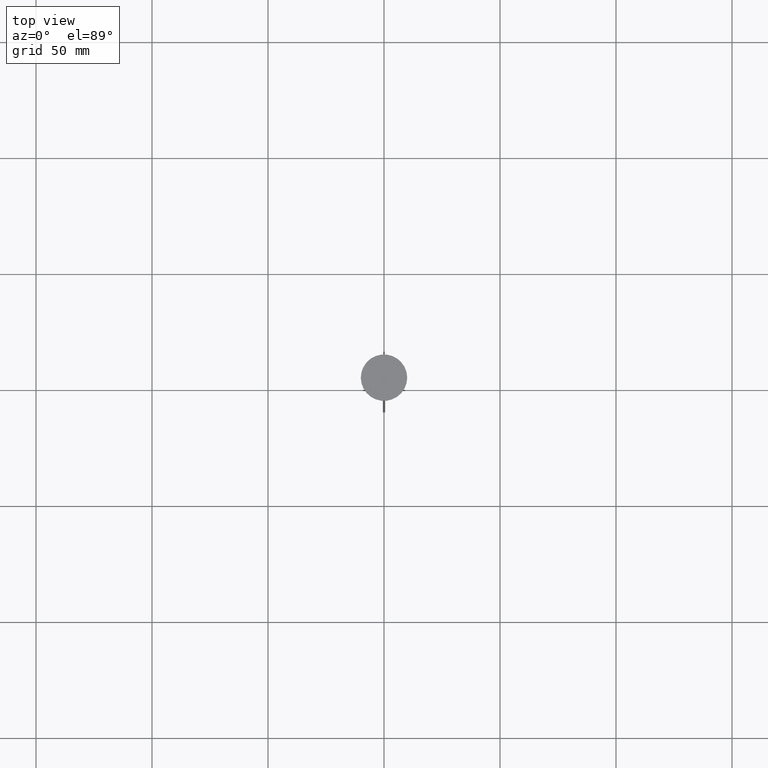
[diagram: clean part render]
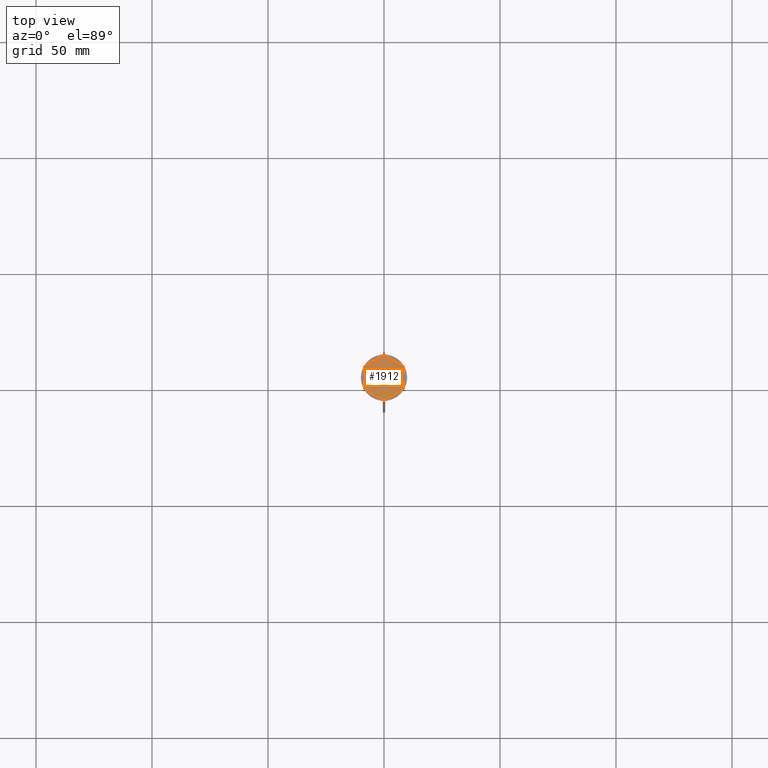
[diagram: same view with one face highlighted and labeled with its STEP entity id]
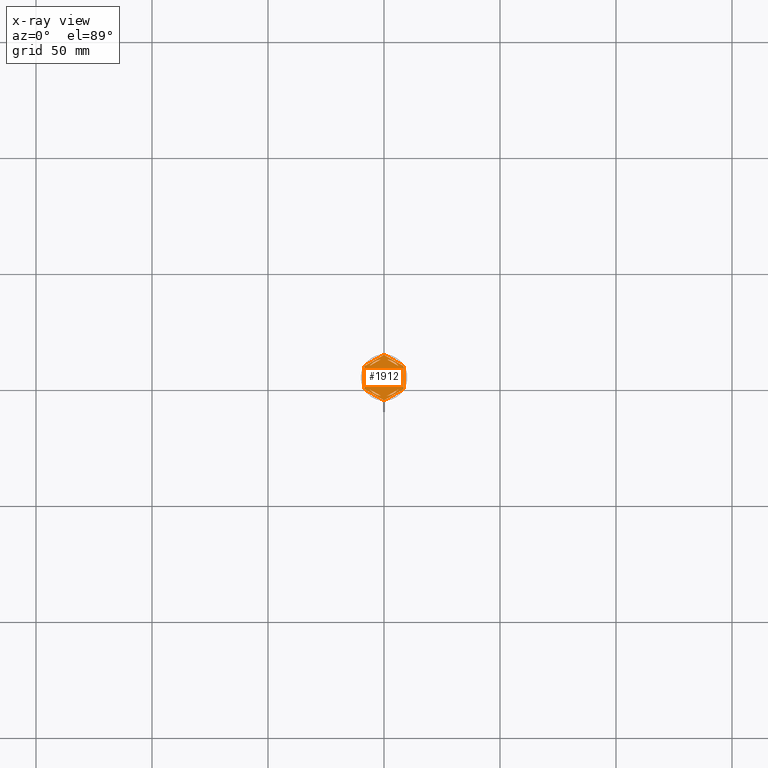
[diagram: x-ray of the same camera — body ghosted, the highlighted face saturated]
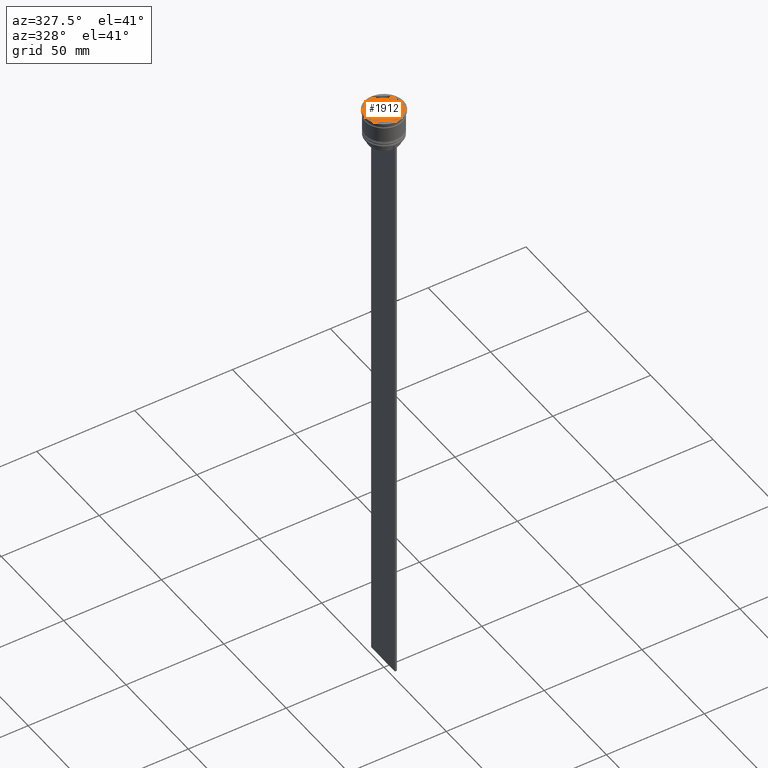
[diagram: same view with one face highlighted and labeled with its STEP entity id]
A machine part, top view. The second image highlights one B-rep face of the part: STEP entity #1912.
The next image is the same camera in x-ray: the body ghosted, the highlighted face saturated — about 0% of this face is hidden behind the body in this view.
A second angle (auxiliary view) of the same face is appended — the face is thin or edge-on in the first view.
In plain terms, the highlighted planar face has unit normal (0, 0, 1).
Its self-contained STEP definition (entity closure, byte-faithful):
#19 = AXIS2_PLACEMENT_3D ( 'NONE', #2513, #1506, #1887 ) ;
#20 = CIRCLE ( 'NONE', #2476, 9.699999999999990408 ) ;
#26 = DIRECTION ( 'NONE',  ( 1.000000000000000000, 0.000000000000000000, 0.000000000000000000 ) ) ;
#53 = ORIENTED_EDGE ( 'NONE', *, *, #2583, .T. ) ;
#59 = LINE ( 'NONE', #2103, #1537 ) ;
#65 = VECTOR ( 'NONE', #997, 1000.000000000000227 ) ;
#78 = LINE ( 'NONE', #2530, #1834 ) ;
#90 = EDGE_CURVE ( 'NONE', #817, #747, #784, .T. ) ;
#91 = CARTESIAN_POINT ( 'NONE',  ( 0.2027787310304044188, -9.697880221277303647, -1.000000000000000000 ) ) ;
#99 = DIRECTION ( 'NONE',  ( 1.000000000000000000, 0.000000000000000000, 0.000000000000000000 ) ) ;
#118 = VECTOR ( 'NONE', #1103, 999.9999999999998863 ) ;
#123 = VERTEX_POINT ( 'NONE', #208 ) ;
#132 = VERTEX_POINT ( 'NONE', #1419 ) ;
#156 = VECTOR ( 'NONE', #1007, 1000.000000000000114 ) ;
#179 = EDGE_LOOP ( 'NONE', ( #2182, #2566 ) ) ;
#188 = CIRCLE ( 'NONE', #1225, 8.000000000000000000 ) ;
#202 = DIRECTION ( 'NONE',  ( 0.8660254037844387076, -0.4999999999999998890, 0.000000000000000000 ) ) ;
#204 = DIRECTION ( 'NONE',  ( 1.000000000000000000, 0.000000000000000000, 0.000000000000000000 ) ) ;
#208 = CARTESIAN_POINT ( 'NONE',  ( -6.160912690248237844, -5.103249437675787092, -1.000000000000000888 ) ) ;
#209 = CARTESIAN_POINT ( 'NONE',  ( 0.000000000000000000, 0.000000000000000000, -1.000000000000000000 ) ) ;
#220 = VERTEX_POINT ( 'NONE', #642 ) ;
#245 = AXIS2_PLACEMENT_3D ( 'NONE', #1846, #1832, #204 ) ;
#256 = CARTESIAN_POINT ( 'NONE',  ( -1.339087309751759047, 7.887131619090796519, -1.000000000000000888 ) ) ;
#262 = ORIENTED_EDGE ( 'NONE', *, *, #1725, .F. ) ;
#275 = CARTESIAN_POINT ( 'NONE',  ( 0.000000000000000000, 0.000000000000000000, -1.000000000000000000 ) ) ;
#276 = ORIENTED_EDGE ( 'NONE', *, *, #1402, .F. ) ;
#280 = DIRECTION ( 'NONE',  ( 0.000000000000000000, 1.000000000000000000, 0.000000000000000000 ) ) ;
#282 = CARTESIAN_POINT ( 'NONE',  ( 8.673617379884035472E-16, 8.660254037844385522, -1.000000000000000888 ) ) ;
#286 = CARTESIAN_POINT ( 'NONE',  ( 0.000000000000000000, 0.000000000000000000, -1.000000000000000000 ) ) ;
#299 = AXIS2_PLACEMENT_3D ( 'NONE', #1893, #1048, #26 ) ;
#300 = VECTOR ( 'NONE', #2032, 1000.000000000000000 ) ;
#328 = EDGE_CURVE ( 'NONE', #446, #132, #78, .T. ) ;
#330 = LINE ( 'NONE', #1617, #2011 ) ;
#338 = DIRECTION ( 'NONE',  ( 1.000000000000000000, 0.000000000000000000, 0.000000000000000000 ) ) ;
#342 = AXIS2_PLACEMENT_3D ( 'NONE', #209, #1098, #1449 ) ;
#367 = CARTESIAN_POINT ( 'NONE',  ( 0.000000000000000000, 0.000000000000000000, -1.000000000000000000 ) ) ;
#375 = CIRCLE ( 'NONE', #2220, 9.699999999999990408 ) ;
#390 = DIRECTION ( 'NONE',  ( -0.000000000000000000, -0.000000000000000000, -1.000000000000000000 ) ) ;
#401 = DIRECTION ( 'NONE',  ( -0.000000000000000000, -0.000000000000000000, -1.000000000000000000 ) ) ;
#419 = CIRCLE ( 'NONE', #1193, 9.699999999999990408 ) ;
#445 = CARTESIAN_POINT ( 'NONE',  ( 0.000000000000000000, 9.814954576223636096, -1.000000000000000000 ) ) ;
#446 = VERTEX_POINT ( 'NONE', #2562 ) ;
#472 = VERTEX_POINT ( 'NONE', #1498 ) ;
#476 = CARTESIAN_POINT ( 'NONE',  ( -1.301042606982605321E-15, -8.660254037844387298, -1.000000000000000888 ) ) ;
#478 = CARTESIAN_POINT ( 'NONE',  ( 0.000000000000000000, 0.000000000000000000, -1.000000000000000000 ) ) ;
#484 = VERTEX_POINT ( 'NONE', #2349 ) ;
#487 = VERTEX_POINT ( 'NONE', #2411 ) ;
#523 = DIRECTION ( 'NONE',  ( -2.003086131649545704E-16, -1.000000000000000000, 0.000000000000000000 ) ) ;
#553 = VECTOR ( 'NONE', #523, 1000.000000000000000 ) ;
#565 = VERTEX_POINT ( 'NONE', #1385 ) ;
#566 = EDGE_CURVE ( 'NONE', #472, #747, #20, .T. ) ;
#583 = CIRCLE ( 'NONE', #722, 9.699999999999990408 ) ;
#588 = DIRECTION ( 'NONE',  ( 1.000000000000000000, 0.000000000000000000, 0.000000000000000000 ) ) ;
#603 = CARTESIAN_POINT ( 'NONE',  ( 0.000000000000000000, 0.000000000000000000, -1.000000000000000000 ) ) ;
#631 = CIRCLE ( 'NONE', #19, 8.000000000000000000 ) ;
#642 = CARTESIAN_POINT ( 'NONE',  ( -8.297221268969593666, 5.024551643058155825, -1.000000000000000000 ) ) ;
#648 = EDGE_CURVE ( 'NONE', #817, #749, #375, .T. ) ;
#665 = EDGE_CURVE ( 'NONE', #1848, #484, #2093, .T. ) ;
#670 = ORIENTED_EDGE ( 'NONE', *, *, #2458, .T. ) ;
#674 = VERTEX_POINT ( 'NONE', #878 ) ;
#675 = CIRCLE ( 'NONE', #245, 8.000000000000000000 ) ;
#687 = CARTESIAN_POINT ( 'NONE',  ( -0.2027787310304044188, -9.697880221277303647, -1.000000000000000000 ) ) ;
#694 = CARTESIAN_POINT ( 'NONE',  ( 1.339087309751762156, -7.887131619090794743, -1.000000000000000888 ) ) ;
#703 = CARTESIAN_POINT ( 'NONE',  ( 8.297221268969593666, 5.024551643058155825, -1.000000000000000000 ) ) ;
#707 = CARTESIAN_POINT ( 'NONE',  ( -8.500000000000000000, -4.673328578219146934, -1.000000000000000000 ) ) ;
#718 = ORIENTED_EDGE ( 'NONE', *, *, #2193, .F. ) ;
#720 = DIRECTION ( 'NONE',  ( 0.000000000000000000, 0.000000000000000000, 1.000000000000000000 ) ) ;
#722 = AXIS2_PLACEMENT_3D ( 'NONE', #1373, #2625, #772 ) ;
#724 = DIRECTION ( 'NONE',  ( -0.000000000000000000, -0.000000000000000000, -1.000000000000000000 ) ) ;
#747 = VERTEX_POINT ( 'NONE', #2283 ) ;
#748 = CARTESIAN_POINT ( 'NONE',  ( -8.000000000000000000, 0.000000000000000000, -1.000000000000000000 ) ) ;
#749 = VERTEX_POINT ( 'NONE', #687 ) ;
#771 = VERTEX_POINT ( 'NONE', #1247 ) ;
#772 = DIRECTION ( 'NONE',  ( 1.000000000000000000, 2.486899575160350651E-14, 0.000000000000000000 ) ) ;
#780 = EDGE_LOOP ( 'NONE', ( #1844, #1429, #1566 ) ) ;
#782 = FACE_BOUND ( 'NONE', #1889, .T. ) ;
#784 = LINE ( 'NONE', #2071, #65 ) ;
#805 = ORIENTED_EDGE ( 'NONE', *, *, #1901, .F. ) ;
#814 = EDGE_LOOP ( 'NONE', ( #2319, #1381 ) ) ;
#817 = VERTEX_POINT ( 'NONE', #91 ) ;
#844 = VECTOR ( 'NONE', #2043, 1000.000000000000114 ) ;
#848 = LINE ( 'NONE', #445, #156 ) ;
#865 = ORIENTED_EDGE ( 'NONE', *, *, #2596, .F. ) ;
#878 = CARTESIAN_POINT ( 'NONE',  ( -8.297221268969593666, -5.024551643058157602, -1.000000000000000000 ) ) ;
#888 = CIRCLE ( 'NONE', #1928, 8.000000000000000000 ) ;
#916 = EDGE_CURVE ( 'NONE', #565, #2284, #330, .T. ) ;
#935 = VECTOR ( 'NONE', #1298, 1000.000000000000114 ) ;
#971 = FACE_BOUND ( 'NONE', #1892, .T. ) ;
#997 = DIRECTION ( 'NONE',  ( 0.8660254037844385966, 0.5000000000000000000, 0.000000000000000000 ) ) ;
#1007 = DIRECTION ( 'NONE',  ( -0.8660254037844387076, -0.4999999999999997780, 0.000000000000000000 ) ) ;
#1033 = ORIENTED_EDGE ( 'NONE', *, *, #2026, .F. ) ;
#1048 = DIRECTION ( 'NONE',  ( -0.000000000000000000, -0.000000000000000000, -1.000000000000000000 ) ) ;
#1091 = EDGE_CURVE ( 'NONE', #2600, #2531, #1448, .T. ) ;
#1098 = DIRECTION ( 'NONE',  ( 0.000000000000000000, 0.000000000000000000, 1.000000000000000000 ) ) ;
#1101 = ORIENTED_EDGE ( 'NONE', *, *, #1091, .F. ) ;
#1103 = DIRECTION ( 'NONE',  ( 0.8660254037844387076, 0.5000000000000001110, -0.000000000000000000 ) ) ;
#1111 = CARTESIAN_POINT ( 'NONE',  ( -1.339087309751766819, -7.887131619090794743, -1.000000000000000888 ) ) ;
#1125 = DIRECTION ( 'NONE',  ( 1.000000000000000000, 0.000000000000000000, 0.000000000000000000 ) ) ;
#1126 = VERTEX_POINT ( 'NONE', #2481 ) ;
#1129 = DIRECTION ( 'NONE',  ( 1.000000000000000000, 0.000000000000000000, 0.000000000000000000 ) ) ;
#1173 = EDGE_CURVE ( 'NONE', #771, #1263, #188, .T. ) ;
#1187 = DIRECTION ( 'NONE',  ( 1.000000000000000000, 0.000000000000000000, -0.000000000000000000 ) ) ;
#1193 = AXIS2_PLACEMENT_3D ( 'NONE', #2533, #1695, #1125 ) ;
#1206 = CARTESIAN_POINT ( 'NONE',  ( -8.500000000000000000, -4.907477288111819824, -1.000000000000000000 ) ) ;
#1210 = ORIENTED_EDGE ( 'NONE', *, *, #2231, .F. ) ;
#1219 = LINE ( 'NONE', #1206, #844 ) ;
#1225 = AXIS2_PLACEMENT_3D ( 'NONE', #1228, #2055, #1459 ) ;
#1228 = CARTESIAN_POINT ( 'NONE',  ( 0.000000000000000000, 0.000000000000000000, -1.000000000000000000 ) ) ;
#1234 = VECTOR ( 'NONE', #1731, 1000.000000000000000 ) ;
#1239 = CARTESIAN_POINT ( 'NONE',  ( 8.500000000000000000, 4.673328578219146934, -1.000000000000000000 ) ) ;
#1242 = LINE ( 'NONE', #2504, #2433 ) ;
#1247 = CARTESIAN_POINT ( 'NONE',  ( 6.160912690248237844, 5.103249437675785316, -1.000000000000000888 ) ) ;
#1260 = EDGE_LOOP ( 'NONE', ( #53, #1101, #2654, #276, #1364, #865, #2292, #718, #670, #1737, #2047, #2244 ) ) ;
#1263 = VERTEX_POINT ( 'NONE', #1752 ) ;
#1284 = VERTEX_POINT ( 'NONE', #2554 ) ;
#1286 = DIRECTION ( 'NONE',  ( 0.000000000000000000, 0.000000000000000000, 1.000000000000000000 ) ) ;
#1298 = DIRECTION ( 'NONE',  ( -0.8660254037844387076, -0.4999999999999997780, 0.000000000000000000 ) ) ;
#1300 = LINE ( 'NONE', #1330, #553 ) ;
#1322 = DIRECTION ( 'NONE',  ( -0.8660254037844384856, 0.5000000000000002220, 0.000000000000000000 ) ) ;
#1323 = LINE ( 'NONE', #1536, #1234 ) ;
#1330 = CARTESIAN_POINT ( 'NONE',  ( 7.500000000000000000, -4.330127018922195425, -1.000000000000000888 ) ) ;
#1364 = ORIENTED_EDGE ( 'NONE', *, *, #2094, .T. ) ;
#1373 = CARTESIAN_POINT ( 'NONE',  ( 0.000000000000000000, 0.000000000000000000, -1.000000000000000000 ) ) ;
#1381 = ORIENTED_EDGE ( 'NONE', *, *, #1520, .F. ) ;
#1385 = CARTESIAN_POINT ( 'NONE',  ( -8.500000000000000000, 4.673328578219146934, -1.000000000000000000 ) ) ;
#1402 = EDGE_CURVE ( 'NONE', #1126, #1284, #583, .T. ) ;
#1419 = CARTESIAN_POINT ( 'NONE',  ( -7.500000000000000000, 2.783882181415010759, -1.000000000000000888 ) ) ;
#1429 = ORIENTED_EDGE ( 'NONE', *, *, #328, .F. ) ;
#1448 = CIRCLE ( 'NONE', #299, 9.699999999999990408 ) ;
#1449 = DIRECTION ( 'NONE',  ( 1.000000000000000000, 0.000000000000000000, 0.000000000000000000 ) ) ;
#1459 = DIRECTION ( 'NONE',  ( 1.000000000000000000, 0.000000000000000000, 0.000000000000000000 ) ) ;
#1482 = EDGE_LOOP ( 'NONE', ( #1751, #805 ) ) ;
#1498 = CARTESIAN_POINT ( 'NONE',  ( 8.500000000000000000, -4.673328578219146934, -1.000000000000000000 ) ) ;
#1506 = DIRECTION ( 'NONE',  ( 0.000000000000000000, 0.000000000000000000, 1.000000000000000000 ) ) ;
#1519 = FACE_BOUND ( 'NONE', #814, .T. ) ;
#1520 = EDGE_CURVE ( 'NONE', #1263, #771, #1242, .T. ) ;
#1523 = LINE ( 'NONE', #476, #935 ) ;
#1536 = CARTESIAN_POINT ( 'NONE',  ( 8.500000000000000000, -4.907477288111818936, -1.000000000000000000 ) ) ;
#1537 = VECTOR ( 'NONE', #1322, 1000.000000000000114 ) ;
#1566 = ORIENTED_EDGE ( 'NONE', *, *, #1788, .F. ) ;
#1570 = FACE_BOUND ( 'NONE', #780, .T. ) ;
#1594 = FACE_OUTER_BOUND ( 'NONE', #1260, .T. ) ;
#1617 = CARTESIAN_POINT ( 'NONE',  ( -8.500000000000000000, 4.907477288111818936, -1.000000000000000000 ) ) ;
#1626 = VERTEX_POINT ( 'NONE', #1111 ) ;
#1695 = DIRECTION ( 'NONE',  ( -0.000000000000000000, -0.000000000000000000, -1.000000000000000000 ) ) ;
#1697 = DIRECTION ( 'NONE',  ( 1.000000000000000000, 0.000000000000000000, 0.000000000000000000 ) ) ;
#1725 = EDGE_CURVE ( 'NONE', #123, #1626, #2092, .T. ) ;
#1729 = EDGE_CURVE ( 'NONE', #2407, #2256, #1523, .T. ) ;
#1731 = DIRECTION ( 'NONE',  ( 0.000000000000000000, 1.000000000000000000, 0.000000000000000000 ) ) ;
#1737 = ORIENTED_EDGE ( 'NONE', *, *, #648, .F. ) ;
#1751 = ORIENTED_EDGE ( 'NONE', *, *, #665, .F. ) ;
#1752 = CARTESIAN_POINT ( 'NONE',  ( 1.339087309751760380, 7.887131619090794743, -1.000000000000000888 ) ) ;
#1787 = CARTESIAN_POINT ( 'NONE',  ( 7.500000000000001776, 2.783882181415006762, -1.000000000000000888 ) ) ;
#1788 = EDGE_CURVE ( 'NONE', #2410, #446, #631, .T. ) ;
#1814 = EDGE_CURVE ( 'NONE', #1626, #123, #59, .T. ) ;
#1832 = DIRECTION ( 'NONE',  ( 0.000000000000000000, 0.000000000000000000, 1.000000000000000000 ) ) ;
#1834 = VECTOR ( 'NONE', #280, 1000.000000000000000 ) ;
#1844 = ORIENTED_EDGE ( 'NONE', *, *, #1995, .F. ) ;
#1846 = CARTESIAN_POINT ( 'NONE',  ( 0.000000000000000000, 0.000000000000000000, -1.000000000000000000 ) ) ;
#1848 = VERTEX_POINT ( 'NONE', #256 ) ;
#1887 = DIRECTION ( 'NONE',  ( 1.000000000000000000, 0.000000000000000000, 0.000000000000000000 ) ) ;
#1889 = EDGE_LOOP ( 'NONE', ( #262, #2664 ) ) ;
#1892 = EDGE_LOOP ( 'NONE', ( #1033, #1210 ) ) ;
#1893 = CARTESIAN_POINT ( 'NONE',  ( 0.000000000000000000, 0.000000000000000000, -1.000000000000000000 ) ) ;
#1901 = EDGE_CURVE ( 'NONE', #484, #1848, #2129, .T. ) ;
#1912 = ADVANCED_FACE ( 'NONE', ( #1519, #971, #2429, #782, #1570, #2409, #1594 ), #2393, .T. ) ;
#1928 = AXIS2_PLACEMENT_3D ( 'NONE', #275, #1286, #1129 ) ;
#1931 = VERTEX_POINT ( 'NONE', #1787 ) ;
#1995 = EDGE_CURVE ( 'NONE', #132, #2410, #2223, .T. ) ;
#2011 = VECTOR ( 'NONE', #2037, 1000.000000000000000 ) ;
#2026 = EDGE_CURVE ( 'NONE', #487, #1931, #675, .T. ) ;
#2032 = DIRECTION ( 'NONE',  ( -0.8660254037844388186, 0.4999999999999997224, 0.000000000000000000 ) ) ;
#2037 = DIRECTION ( 'NONE',  ( 0.000000000000000000, -1.000000000000000000, 0.000000000000000000 ) ) ;
#2043 = DIRECTION ( 'NONE',  ( 0.8660254037844387076, -0.4999999999999997780, 0.000000000000000000 ) ) ;
#2047 = ORIENTED_EDGE ( 'NONE', *, *, #90, .T. ) ;
#2055 = DIRECTION ( 'NONE',  ( 0.000000000000000000, 0.000000000000000000, 1.000000000000000000 ) ) ;
#2071 = CARTESIAN_POINT ( 'NONE',  ( 8.729740977282959667E-16, -9.814954576223637872, -1.000000000000000000 ) ) ;
#2072 = CARTESIAN_POINT ( 'NONE',  ( 8.500000000000000000, 4.907477288111819824, -1.000000000000000000 ) ) ;
#2092 = CIRCLE ( 'NONE', #2640, 8.000000000000000000 ) ;
#2093 = CIRCLE ( 'NONE', #342, 8.000000000000000000 ) ;
#2094 = EDGE_CURVE ( 'NONE', #1126, #220, #848, .T. ) ;
#2103 = CARTESIAN_POINT ( 'NONE',  ( -7.500000000000000000, -4.330127018922193649, -1.000000000000000888 ) ) ;
#2129 = LINE ( 'NONE', #282, #118 ) ;
#2177 = CARTESIAN_POINT ( 'NONE',  ( 0.000000000000000000, 0.000000000000000000, -1.000000000000000000 ) ) ;
#2180 = EDGE_CURVE ( 'NONE', #2256, #2407, #888, .T. ) ;
#2182 = ORIENTED_EDGE ( 'NONE', *, *, #2180, .F. ) ;
#2192 = DIRECTION ( 'NONE',  ( 0.000000000000000000, 0.000000000000000000, 1.000000000000000000 ) ) ;
#2193 = EDGE_CURVE ( 'NONE', #674, #2284, #2479, .T. ) ;
#2220 = AXIS2_PLACEMENT_3D ( 'NONE', #603, #390, #2432 ) ;
#2223 = CIRCLE ( 'NONE', #2608, 8.000000000000000000 ) ;
#2231 = EDGE_CURVE ( 'NONE', #1931, #487, #1300, .T. ) ;
#2235 = LINE ( 'NONE', #2072, #300 ) ;
#2244 = ORIENTED_EDGE ( 'NONE', *, *, #566, .F. ) ;
#2256 = VERTEX_POINT ( 'NONE', #694 ) ;
#2267 = AXIS2_PLACEMENT_3D ( 'NONE', #478, #724, #99 ) ;
#2283 = CARTESIAN_POINT ( 'NONE',  ( 8.297221268969593666, -5.024551643058152273, -1.000000000000000000 ) ) ;
#2284 = VERTEX_POINT ( 'NONE', #707 ) ;
#2292 = ORIENTED_EDGE ( 'NONE', *, *, #916, .T. ) ;
#2319 = ORIENTED_EDGE ( 'NONE', *, *, #1173, .F. ) ;
#2349 = CARTESIAN_POINT ( 'NONE',  ( -6.160912690248241397, 5.103249437675783540, -1.000000000000000888 ) ) ;
#2393 = PLANE ( 'NONE',  #2402 ) ;
#2402 = AXIS2_PLACEMENT_3D ( 'NONE', #367, #2192, #1187 ) ;
#2407 = VERTEX_POINT ( 'NONE', #2591 ) ;
#2409 = FACE_BOUND ( 'NONE', #1482, .T. ) ;
#2410 = VERTEX_POINT ( 'NONE', #748 ) ;
#2411 = CARTESIAN_POINT ( 'NONE',  ( 7.500000000000000000, -2.783882181415009427, -1.000000000000000888 ) ) ;
#2421 = CARTESIAN_POINT ( 'NONE',  ( 0.000000000000000000, 0.000000000000000000, -1.000000000000000000 ) ) ;
#2429 = FACE_BOUND ( 'NONE', #179, .T. ) ;
#2432 = DIRECTION ( 'NONE',  ( 1.000000000000000000, 0.000000000000000000, 0.000000000000000000 ) ) ;
#2433 = VECTOR ( 'NONE', #202, 1000.000000000000000 ) ;
#2458 = EDGE_CURVE ( 'NONE', #674, #749, #1219, .T. ) ;
#2476 = AXIS2_PLACEMENT_3D ( 'NONE', #2421, #401, #588 ) ;
#2479 = CIRCLE ( 'NONE', #2267, 9.699999999999990408 ) ;
#2481 = CARTESIAN_POINT ( 'NONE',  ( -0.2027787310304009494, 9.697880221277303647, -1.000000000000000000 ) ) ;
#2487 = EDGE_CURVE ( 'NONE', #2600, #1284, #2235, .T. ) ;
#2504 = CARTESIAN_POINT ( 'NONE',  ( 7.500000000000001776, 4.330127018922192761, -1.000000000000000888 ) ) ;
#2513 = CARTESIAN_POINT ( 'NONE',  ( 0.000000000000000000, 0.000000000000000000, -1.000000000000000000 ) ) ;
#2530 = CARTESIAN_POINT ( 'NONE',  ( -7.500000000000000000, 4.330127018922190985, -1.000000000000000888 ) ) ;
#2531 = VERTEX_POINT ( 'NONE', #1239 ) ;
#2533 = CARTESIAN_POINT ( 'NONE',  ( 0.000000000000000000, 0.000000000000000000, -1.000000000000000000 ) ) ;
#2554 = CARTESIAN_POINT ( 'NONE',  ( 0.2027787310304000890, 9.697880221277303647, -1.000000000000000000 ) ) ;
#2562 = CARTESIAN_POINT ( 'NONE',  ( -7.500000000000000000, -2.783882181415010759, -1.000000000000000888 ) ) ;
#2566 = ORIENTED_EDGE ( 'NONE', *, *, #1729, .F. ) ;
#2583 = EDGE_CURVE ( 'NONE', #472, #2531, #1323, .T. ) ;
#2591 = CARTESIAN_POINT ( 'NONE',  ( 6.160912690248236068, -5.103249437675787981, -1.000000000000000888 ) ) ;
#2596 = EDGE_CURVE ( 'NONE', #565, #220, #419, .T. ) ;
#2600 = VERTEX_POINT ( 'NONE', #703 ) ;
#2608 = AXIS2_PLACEMENT_3D ( 'NONE', #2177, #2616, #338 ) ;
#2616 = DIRECTION ( 'NONE',  ( 0.000000000000000000, 0.000000000000000000, 1.000000000000000000 ) ) ;
#2625 = DIRECTION ( 'NONE',  ( -0.000000000000000000, -0.000000000000000000, -1.000000000000000000 ) ) ;
#2640 = AXIS2_PLACEMENT_3D ( 'NONE', #286, #720, #1697 ) ;
#2654 = ORIENTED_EDGE ( 'NONE', *, *, #2487, .T. ) ;
#2664 = ORIENTED_EDGE ( 'NONE', *, *, #1814, .F. ) ;